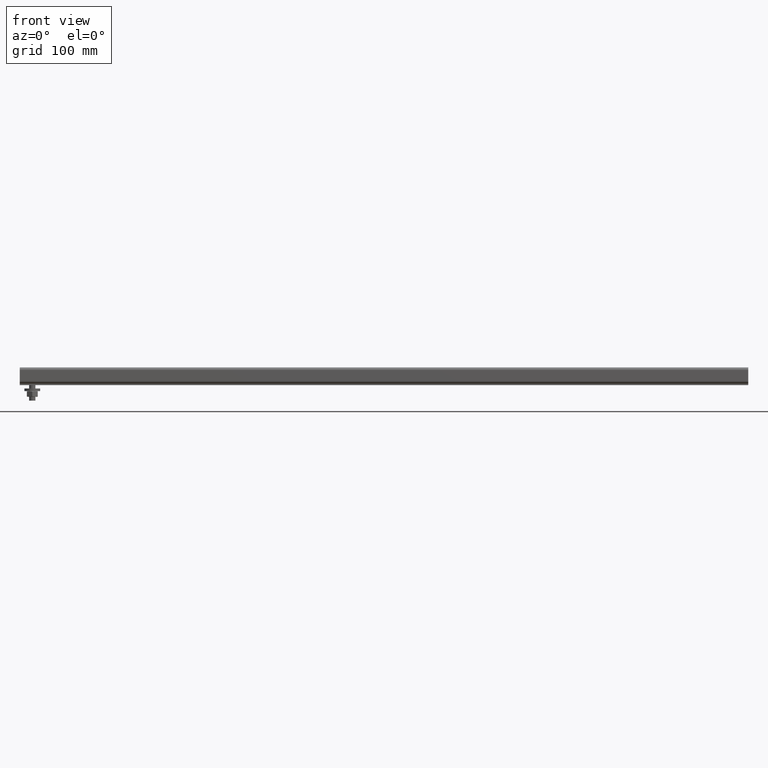
[diagram: clean part render]
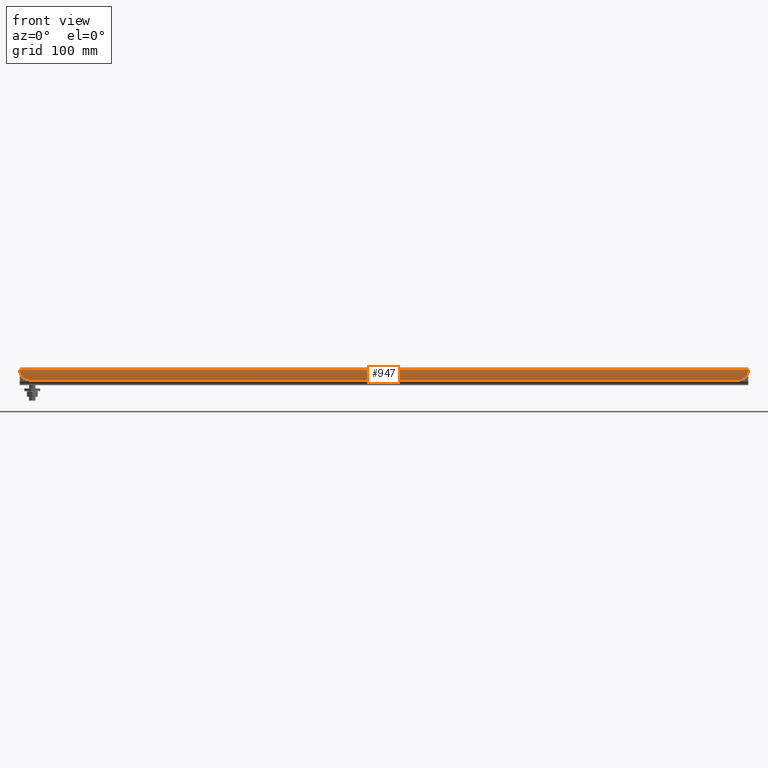
[diagram: same view with one face highlighted and labeled with its STEP entity id]
A machine part, front view. The second image highlights one B-rep face of the part: STEP entity #947.
In plain terms, the highlighted planar face has unit normal (0, -1, -0).
Its self-contained STEP definition (entity closure, byte-faithful):
#60 = DIRECTION ( 'NONE',  ( 1.000000000000000000, 0.0000000000000000000, 0.0000000000000000000 ) ) ;
#61 = LINE ( 'NONE', #312, #981 ) ;
#88 = DIRECTION ( 'NONE',  ( 0.0000000000000000000, 0.0000000000000000000, -1.000000000000000000 ) ) ;
#262 = EDGE_LOOP ( 'NONE', ( #1652, #1162, #340, #444, #1008, #2343 ) ) ;
#268 = FACE_OUTER_BOUND ( 'NONE', #262, .T. ) ;
#290 = CARTESIAN_POINT ( 'NONE',  ( -14.12500000000000000, -1.094000000000011852, 0.4470000000000000639 ) ) ;
#300 = AXIS2_PLACEMENT_3D ( 'NONE', #290, #1499, #1480 ) ;
#312 = CARTESIAN_POINT ( 'NONE',  ( -14.50000000000000178, -1.094000000000012074, 0.4640000000000000235 ) ) ;
#333 = CARTESIAN_POINT ( 'NONE',  ( -14.12500000000000000, -1.094000000000011852, 0.07200000000000000844 ) ) ;
#340 = ORIENTED_EDGE ( 'NONE', *, *, #2480, .T. ) ;
#343 = AXIS2_PLACEMENT_3D ( 'NONE', #1299, #1274, #88 ) ;
#397 = VERTEX_POINT ( 'NONE', #1425 ) ;
#420 = CARTESIAN_POINT ( 'NONE',  ( 14.50000000000000178, -1.094000000000011852, 0.5095000000000000639 ) ) ;
#439 = VECTOR ( 'NONE', #60, 39.37007874015748143 ) ;
#444 = ORIENTED_EDGE ( 'NONE', *, *, #551, .F. ) ;
#495 = VERTEX_POINT ( 'NONE', #2437 ) ;
#522 = CARTESIAN_POINT ( 'NONE',  ( 14.50000000000000178, -1.094000000000011852, 0.5095000000000000639 ) ) ;
#551 = EDGE_CURVE ( 'NONE', #495, #2399, #1082, .T. ) ;
#583 = EDGE_CURVE ( 'NONE', #397, #1249, #61, .T. ) ;
#749 = DIRECTION ( 'NONE',  ( 0.0000000000000000000, 6.123031769111889989E-17, -1.000000000000000000 ) ) ;
#790 = LINE ( 'NONE', #420, #1427 ) ;
#858 = CIRCLE ( 'NONE', #300, 0.3750000000000000555 ) ;
#891 = EDGE_CURVE ( 'NONE', #995, #973, #858, .T. ) ;
#928 = DIRECTION ( 'NONE',  ( 0.0000000000000000000, -1.000000000000000000, -6.123031769111889989E-17 ) ) ;
#947 = ADVANCED_FACE ( 'NONE', ( #268 ), #1321, .T. ) ;
#968 = LINE ( 'NONE', #2355, #439 ) ;
#973 = VERTEX_POINT ( 'NONE', #1535 ) ;
#981 = VECTOR ( 'NONE', #1703, 39.37007874015748143 ) ;
#995 = VERTEX_POINT ( 'NONE', #333 ) ;
#1008 = ORIENTED_EDGE ( 'NONE', *, *, #2137, .T. ) ;
#1077 = CARTESIAN_POINT ( 'NONE',  ( 14.12500000000000000, -1.094000000000011852, 0.07200000000000000844 ) ) ;
#1082 = CIRCLE ( 'NONE', #343, 0.3750000000000000555 ) ;
#1162 = ORIENTED_EDGE ( 'NONE', *, *, #891, .F. ) ;
#1233 = CARTESIAN_POINT ( 'NONE',  ( 14.50000000000000178, -1.094000000000011852, 0.4640000000000000235 ) ) ;
#1249 = VERTEX_POINT ( 'NONE', #1233 ) ;
#1274 = DIRECTION ( 'NONE',  ( -0.0000000000000000000, 1.000000000000000000, -0.0000000000000000000 ) ) ;
#1299 = CARTESIAN_POINT ( 'NONE',  ( 14.12500000000000000, -1.094000000000011852, 0.4470000000000000639 ) ) ;
#1302 = CARTESIAN_POINT ( 'NONE',  ( -14.50000000000000178, -1.094000000000011852, 0.5095000000000000639 ) ) ;
#1321 = PLANE ( 'NONE',  #2418 ) ;
#1401 = VECTOR ( 'NONE', #1503, 39.37007874015748143 ) ;
#1410 = EDGE_CURVE ( 'NONE', #397, #973, #2170, .T. ) ;
#1425 = CARTESIAN_POINT ( 'NONE',  ( -14.50000000000000178, -1.094000000000011852, 0.4640000000000000235 ) ) ;
#1427 = VECTOR ( 'NONE', #2127, 39.37007874015748143 ) ;
#1480 = DIRECTION ( 'NONE',  ( 0.0000000000000000000, 0.0000000000000000000, -1.000000000000000000 ) ) ;
#1499 = DIRECTION ( 'NONE',  ( -0.0000000000000000000, 1.000000000000000000, -0.0000000000000000000 ) ) ;
#1503 = DIRECTION ( 'NONE',  ( 0.0000000000000000000, 6.123031769111889989E-17, -1.000000000000000000 ) ) ;
#1535 = CARTESIAN_POINT ( 'NONE',  ( -14.50000000000000178, -1.094000000000011852, 0.4470000000000000639 ) ) ;
#1652 = ORIENTED_EDGE ( 'NONE', *, *, #1410, .T. ) ;
#1703 = DIRECTION ( 'NONE',  ( 1.000000000000000000, 0.0000000000000000000, 0.0000000000000000000 ) ) ;
#2127 = DIRECTION ( 'NONE',  ( -0.0000000000000000000, -6.123031769111889989E-17, 1.000000000000000000 ) ) ;
#2137 = EDGE_CURVE ( 'NONE', #495, #1249, #790, .T. ) ;
#2170 = LINE ( 'NONE', #1302, #1401 ) ;
#2343 = ORIENTED_EDGE ( 'NONE', *, *, #583, .F. ) ;
#2355 = CARTESIAN_POINT ( 'NONE',  ( 14.50000000000000178, -1.094000000000011852, 0.07200000000000000844 ) ) ;
#2399 = VERTEX_POINT ( 'NONE', #1077 ) ;
#2418 = AXIS2_PLACEMENT_3D ( 'NONE', #522, #928, #749 ) ;
#2437 = CARTESIAN_POINT ( 'NONE',  ( 14.50000000000000178, -1.094000000000011852, 0.4470000000000000639 ) ) ;
#2480 = EDGE_CURVE ( 'NONE', #995, #2399, #968, .T. ) ;